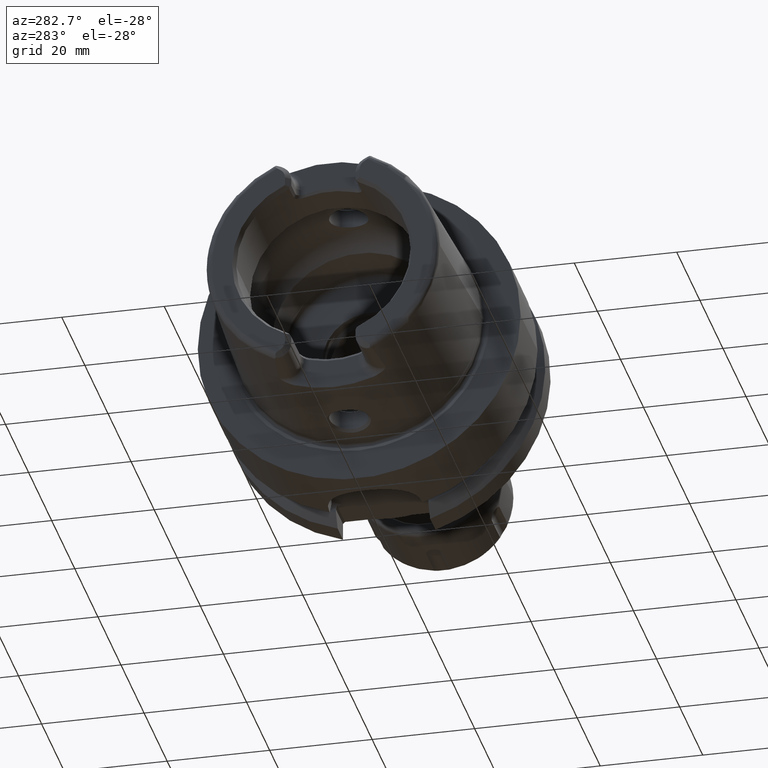
[diagram: clean part render]
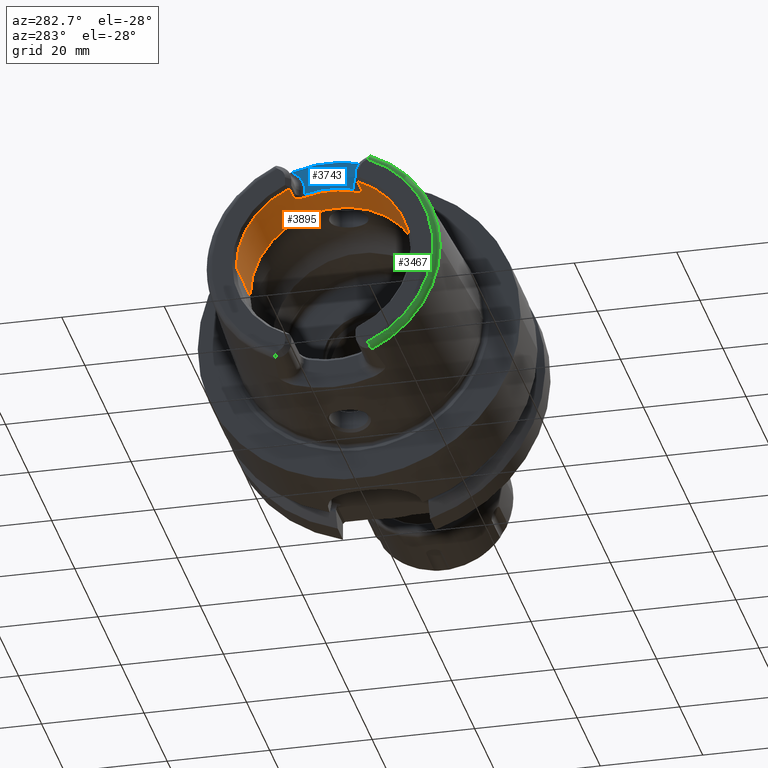
[diagram: same view with three faces highlighted in distinct colors, each labeled with its STEP entity id]
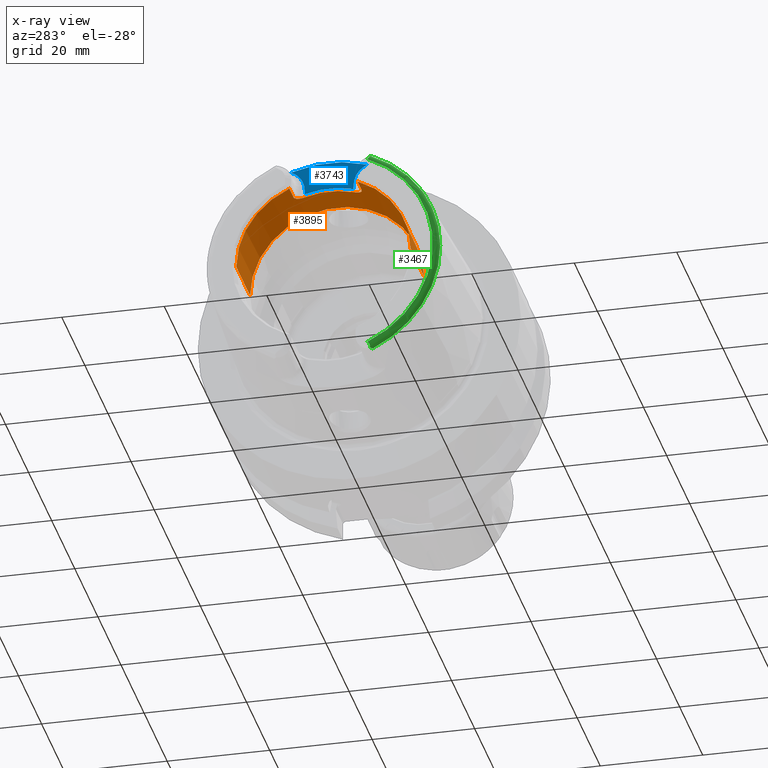
[diagram: x-ray of the same camera — body ghosted, the three highlighted faces saturated]
A machine part, auxiliary view with three faces highlighted in distinct colors.
The next image is the same camera in x-ray (body ghosted, the three faces saturated) — at least one of them is partly hidden behind the body in this view.
Their STEP definitions:

[orange] entity #3895 — the highlighted cylindrical surface (partial cylindrical patch) has radius 17 mm, axis along (1, 0, 0).
#362=CARTESIAN_POINT('',(-3.1E1,0.E0,0.E0));
#363=DIRECTION('',(1.E0,0.E0,0.E0));
#364=DIRECTION('',(0.E0,1.E0,0.E0));
#365=AXIS2_PLACEMENT_3D('',#362,#363,#364);
#394=CARTESIAN_POINT('',(-3.1E1,0.E0,0.E0));
#395=DIRECTION('',(1.E0,0.E0,0.E0));
#396=DIRECTION('',(0.E0,-3.910839598454E-1,9.203550056102E-1));
#397=AXIS2_PLACEMENT_3D('',#394,#395,#396);
#559=DIRECTION('',(1.E0,0.E0,0.E0));
#560=VECTOR('',#559,3.5E0);
#561=CARTESIAN_POINT('',(-3.1E1,6.648427317371E0,1.564603509537E1));
#562=LINE('',#561,#560);
#563=CARTESIAN_POINT('',(-2.571132486541E1,4.77E0,1.631708000838E1));
#564=CARTESIAN_POINT('',(-2.570911463045E1,4.851899929325E0,1.629313806150E1));
#565=CARTESIAN_POINT('',(-2.571539985496E1,5.014300274441E0,1.624433189365E1));
#566=CARTESIAN_POINT('',(-2.575723226820E1,5.255574737127E0,1.616786516493E1));
#567=CARTESIAN_POINT('',(-2.583019759937E1,5.488813832187E0,1.609012650164E1));
#568=CARTESIAN_POINT('',(-2.593222755914E1,5.709311810621E0,1.601314455534E1));
#569=CARTESIAN_POINT('',(-2.606208908479E1,5.913640570765E0,1.593873381343E1));
#570=CARTESIAN_POINT('',(-2.621579663552E1,6.097621457296E0,1.586916363348E1));
#571=CARTESIAN_POINT('',(-2.639004084082E1,6.257927374534E0,1.580654307494E1));
#572=CARTESIAN_POINT('',(-2.658287946713E1,6.394281114327E0,1.575179653388E1));
#573=CARTESIAN_POINT('',(-2.679414325254E1,6.504885265694E0,1.570637036291E1));
#574=CARTESIAN_POINT('',(-2.702072491693E1,6.586740689310E0,1.567215753589E1));
#575=CARTESIAN_POINT('',(-2.725841410654E1,6.637201205541E0,1.565081274977E1));
#576=CARTESIAN_POINT('',(-2.741884128981E1,6.648427317371E0,1.564603509537E1));
#577=CARTESIAN_POINT('',(-2.75E1,6.648427317371E0,1.564603509537E1));
#579=CARTESIAN_POINT('',(-2.571132486541E1,-4.77E0,1.631708000838E1));
#580=CARTESIAN_POINT('',(-2.571132486541E1,-4.151241293882E0,1.649796280277E1));
#581=CARTESIAN_POINT('',(-2.571132889067E1,-2.893125957956E0,1.678926713017E1));
#582=CARTESIAN_POINT('',(-2.571132738120E1,-9.685489423330E-1,
1.700915920873E1));
#583=CARTESIAN_POINT('',(-2.571132738120E1,9.685489423332E-1,1.700915920873E1));
#584=CARTESIAN_POINT('',(-2.571132889067E1,2.893125957955E0,1.678926713017E1));
#585=CARTESIAN_POINT('',(-2.571132486541E1,4.151241293884E0,1.649796280277E1));
#586=CARTESIAN_POINT('',(-2.571132486541E1,4.77E0,1.631708000838E1));
#588=CARTESIAN_POINT('',(-2.75E1,-6.648427317371E0,1.564603509537E1));
#589=CARTESIAN_POINT('',(-2.741886739757E1,-6.648427317371E0,1.564603509537E1));
#590=CARTESIAN_POINT('',(-2.725846026145E1,-6.637216591931E0,1.565080624648E1));
#591=CARTESIAN_POINT('',(-2.702047669465E1,-6.586680175792E0,1.567218311946E1));
#592=CARTESIAN_POINT('',(-2.679396033382E1,-6.504789416100E0,1.570640995358E1));
#593=CARTESIAN_POINT('',(-2.658322850975E1,-6.394447887183E0,1.575172726773E1));
#594=CARTESIAN_POINT('',(-2.639118887217E1,-6.258799446744E0,1.580619508840E1));
#595=CARTESIAN_POINT('',(-2.621738949273E1,-6.099242016698E0,1.586853752436E1));
#596=CARTESIAN_POINT('',(-2.606384631874E1,-5.916012648986E0,1.593785105703E1));
#597=CARTESIAN_POINT('',(-2.593366664869E1,-5.711955003317E0,1.601220141386E1));
#598=CARTESIAN_POINT('',(-2.583107108488E1,-5.491206341112E0,1.608931480424E1));
#599=CARTESIAN_POINT('',(-2.575746962839E1,-5.256749499660E0,1.616748882623E1));
#600=CARTESIAN_POINT('',(-2.571543732099E1,-5.014873021211E0,1.624415783103E1));
#601=CARTESIAN_POINT('',(-2.570911008721E1,-4.852068278437E0,1.629308884771E1));
#602=CARTESIAN_POINT('',(-2.571132486541E1,-4.77E0,1.631708000838E1));
#604=DIRECTION('',(1.E0,0.E0,0.E0));
#605=VECTOR('',#604,3.5E0);
#606=CARTESIAN_POINT('',(-3.1E1,-6.648427317371E0,1.564603509537E1));
#607=LINE('',#606,#605);
#608=CARTESIAN_POINT('',(-1.899602540378E1,0.E0,0.E0));
#609=DIRECTION('',(1.E0,0.E0,0.E0));
#610=DIRECTION('',(0.E0,1.E0,0.E0));
#611=AXIS2_PLACEMENT_3D('',#608,#609,#610);
#666=DIRECTION('',(-1.E0,0.E0,0.E0));
#667=VECTOR('',#666,1.200397459622E1);
#668=CARTESIAN_POINT('',(-1.899602540378E1,1.7E1,0.E0));
#669=LINE('',#668,#667);
#675=DIRECTION('',(-1.E0,0.E0,0.E0));
#676=VECTOR('',#675,1.200397459622E1);
#677=CARTESIAN_POINT('',(-1.899602540378E1,-1.7E1,0.E0));
#678=LINE('',#677,#676);
#2831=CARTESIAN_POINT('',(-1.899602540378E1,1.7E1,0.E0));
#2832=VERTEX_POINT('',#2831);
#2833=CARTESIAN_POINT('',(-3.1E1,1.7E1,0.E0));
#2834=VERTEX_POINT('',#2833);
#2843=CARTESIAN_POINT('',(-1.899602540378E1,-1.7E1,0.E0));
#2844=VERTEX_POINT('',#2843);
#2845=CARTESIAN_POINT('',(-3.1E1,-1.7E1,0.E0));
#2846=VERTEX_POINT('',#2845);
#2912=CARTESIAN_POINT('',(-2.75E1,6.648427317371E0,1.564603509537E1));
#2913=VERTEX_POINT('',#2912);
#2914=CARTESIAN_POINT('',(-2.571132486541E1,4.77E0,1.631708000838E1));
#2915=VERTEX_POINT('',#2914);
#2916=CARTESIAN_POINT('',(-2.75E1,-6.648427317371E0,1.564603509537E1));
#2917=VERTEX_POINT('',#2916);
#2918=CARTESIAN_POINT('',(-2.571132486541E1,-4.77E0,1.631708000838E1));
#2919=VERTEX_POINT('',#2918);
#2924=CARTESIAN_POINT('',(-3.1E1,6.648427317371E0,1.564603509537E1));
#2925=VERTEX_POINT('',#2924);
#2926=CARTESIAN_POINT('',(-3.1E1,-6.648427317371E0,1.564603509537E1));
#2927=VERTEX_POINT('',#2926);
#3874=CARTESIAN_POINT('',(-3.41E1,0.E0,0.E0));
#3875=DIRECTION('',(1.E0,0.E0,0.E0));
#3876=DIRECTION('',(0.E0,-1.E0,0.E0));
#3877=AXIS2_PLACEMENT_3D('',#3874,#3875,#3876);
#3878=CYLINDRICAL_SURFACE('',#3877,1.7E1);
#3879=ORIENTED_EDGE('',*,*,#3611,.T.);
#3881=ORIENTED_EDGE('',*,*,#3880,.F.);
#3882=ORIENTED_EDGE('',*,*,#3759,.F.);
#3883=ORIENTED_EDGE('',*,*,#3814,.F.);
#3884=ORIENTED_EDGE('',*,*,#3829,.F.);
#3885=ORIENTED_EDGE('',*,*,#3576,.T.);
#3887=ORIENTED_EDGE('',*,*,#3886,.F.);
#3889=ORIENTED_EDGE('',*,*,#3888,.F.);
#3891=ORIENTED_EDGE('',*,*,#3890,.T.);
#3892=ORIENTED_EDGE('',*,*,#3556,.T.);
#3893=EDGE_LOOP('',(#3879,#3881,#3882,#3883,#3884,#3885,#3887,#3889,#3891,
#3892));
#3894=FACE_OUTER_BOUND('',#3893,.F.);
#3895=ADVANCED_FACE('',(#3894),#3878,.F.);
#366=CIRCLE('',#365,1.7E1);
#398=CIRCLE('',#397,1.7E1);
#578=B_SPLINE_CURVE_WITH_KNOTS('',3,(#563,#564,#565,#566,#567,#568,#569,#570,
#571,#572,#573,#574,#575,#576,#577),.UNSPECIFIED.,.F.,.F.,(4,1,1,1,1,1,1,1,1,1,
1,1,4),(0.E0,8.333333333333E-2,1.666666666667E-1,2.5E-1,3.333333333333E-1,
4.166666666667E-1,5.E-1,5.833333333333E-1,6.666666666667E-1,7.5E-1,
8.333333333333E-1,9.166666666667E-1,1.E0),.UNSPECIFIED.);
#587=B_SPLINE_CURVE_WITH_KNOTS('',3,(#579,#580,#581,#582,#583,#584,#585,#586),
.UNSPECIFIED.,.F.,.F.,(4,1,1,1,1,4),(0.E0,2.E-1,4.E-1,6.E-1,8.E-1,1.E0),
.UNSPECIFIED.);
#603=B_SPLINE_CURVE_WITH_KNOTS('',3,(#588,#589,#590,#591,#592,#593,#594,#595,
#596,#597,#598,#599,#600,#601,#602),.UNSPECIFIED.,.F.,.F.,(4,1,1,1,1,1,1,1,1,1,
1,1,4),(0.E0,8.333333333333E-2,1.666666666667E-1,2.5E-1,3.333333333333E-1,
4.166666666667E-1,5.E-1,5.833333333333E-1,6.666666666667E-1,7.5E-1,
8.333333333333E-1,9.166666666667E-1,1.E0),.UNSPECIFIED.);
#612=CIRCLE('',#611,1.7E1);
#3556=EDGE_CURVE('',#2834,#2925,#366,.T.);
#3576=EDGE_CURVE('',#2927,#2846,#398,.T.);
#3611=EDGE_CURVE('',#2925,#2913,#562,.T.);
#3759=EDGE_CURVE('',#2919,#2915,#587,.T.);
#3814=EDGE_CURVE('',#2917,#2919,#603,.T.);
#3829=EDGE_CURVE('',#2927,#2917,#607,.T.);
#3880=EDGE_CURVE('',#2915,#2913,#578,.T.);
#3886=EDGE_CURVE('',#2844,#2846,#678,.T.);
#3888=EDGE_CURVE('',#2832,#2844,#612,.T.);
#3890=EDGE_CURVE('',#2832,#2834,#669,.T.);

[blue] entity #3743 — the highlighted planar face has unit normal (-1, 0, 0).
#9=CARTESIAN_POINT('',(-2.6E1,0.E0,0.E0));
#10=DIRECTION('',(1.E0,0.E0,0.E0));
#11=DIRECTION('',(0.E0,3.233021702202E-1,9.462957818415E-1));
#12=AXIS2_PLACEMENT_3D('',#9,#10,#11);
#508=DIRECTION('',(0.E0,1.645939623868E-11,1.E0));
#509=VECTOR('',#508,8.529199916087E-1);
#510=CARTESIAN_POINT('',(-2.6E1,4.769999999986E0,1.681708000839E1));
#511=LINE('',#510,#509);
#512=CARTESIAN_POINT('',(-2.6E1,9.27E0,1.767E1));
#513=DIRECTION('',(-1.E0,0.E0,0.E0));
#514=DIRECTION('',(0.E0,-1.E0,0.E0));
#515=AXIS2_PLACEMENT_3D('',#512,#513,#514);
#517=CARTESIAN_POINT('',(-2.6E1,-9.27E0,1.767E1));
#518=DIRECTION('',(-1.E0,0.E0,0.E0));
#519=DIRECTION('',(0.E0,4.062693958732E-1,9.137533463560E-1));
#520=AXIS2_PLACEMENT_3D('',#517,#518,#519);
#522=DIRECTION('',(0.E0,1.641566002193E-11,-1.E0));
#523=VECTOR('',#522,8.529199916084E-1);
#524=CARTESIAN_POINT('',(-2.6E1,-4.770000000001E0,1.767E1));
#525=LINE('',#524,#523);
#526=CARTESIAN_POINT('',(-2.6E1,4.769999999986E0,1.681708000839E1));
#527=CARTESIAN_POINT('',(-2.6E1,4.148583737710E0,1.699873969073E1));
#528=CARTESIAN_POINT('',(-2.6E1,2.894384068626E0,1.728890718055E1));
#529=CARTESIAN_POINT('',(-2.6E1,9.681288020921E-1,1.750922547308E1));
#530=CARTESIAN_POINT('',(-2.6E1,-9.681288020820E-1,1.750922547309E1));
#531=CARTESIAN_POINT('',(-2.6E1,-2.894384068607E0,1.728890718055E1));
#532=CARTESIAN_POINT('',(-2.6E1,-4.148583737703E0,1.699873969073E1));
#533=CARTESIAN_POINT('',(-2.6E1,-4.769999999987E0,1.681708000839E1));
#2852=CARTESIAN_POINT('',(-2.6E1,4.77E0,1.767E1));
#2854=VERTEX_POINT('',#2852);
#2856=CARTESIAN_POINT('',(-2.6E1,-4.77E0,1.767E1));
#2858=VERTEX_POINT('',#2856);
#2860=CARTESIAN_POINT('',(-2.6E1,7.441787718571E0,2.178189005860E1));
#2861=VERTEX_POINT('',#2860);
#2866=CARTESIAN_POINT('',(-2.6E1,-7.441787718571E0,2.178189005860E1));
#2867=VERTEX_POINT('',#2866);
#2904=CARTESIAN_POINT('',(-2.6E1,4.769999999986E0,1.681708000839E1));
#2905=VERTEX_POINT('',#2904);
#2906=CARTESIAN_POINT('',(-2.6E1,-4.769999999987E0,1.681708000839E1));
#2907=VERTEX_POINT('',#2906);
#3729=CARTESIAN_POINT('',(-2.6E1,0.E0,0.E0));
#3730=DIRECTION('',(-1.E0,0.E0,0.E0));
#3731=DIRECTION('',(0.E0,0.E0,1.E0));
#3732=AXIS2_PLACEMENT_3D('',#3729,#3730,#3731);
#3733=PLANE('',#3732);
#3734=ORIENTED_EDGE('',*,*,#3640,.T.);
#3735=ORIENTED_EDGE('',*,*,#3658,.T.);
#3736=ORIENTED_EDGE('',*,*,#3303,.T.);
#3737=ORIENTED_EDGE('',*,*,#3364,.T.);
#3738=ORIENTED_EDGE('',*,*,#3382,.T.);
#3740=ORIENTED_EDGE('',*,*,#3739,.F.);
#3741=EDGE_LOOP('',(#3734,#3735,#3736,#3737,#3738,#3740));
#3742=FACE_OUTER_BOUND('',#3741,.F.);
#3743=ADVANCED_FACE('',(#3742),#3733,.T.);
#13=CIRCLE('',#12,2.301805680272E1);
#516=CIRCLE('',#515,4.5E0);
#521=CIRCLE('',#520,4.5E0);
#534=B_SPLINE_CURVE_WITH_KNOTS('',3,(#526,#527,#528,#529,#530,#531,#532,#533),
.UNSPECIFIED.,.F.,.F.,(4,1,1,1,1,4),(0.E0,2.E-1,4.E-1,6.E-1,8.E-1,1.E0),
.UNSPECIFIED.);
#3303=EDGE_CURVE('',#2861,#2867,#13,.T.);
#3364=EDGE_CURVE('',#2867,#2858,#521,.T.);
#3382=EDGE_CURVE('',#2858,#2907,#525,.T.);
#3640=EDGE_CURVE('',#2905,#2854,#511,.T.);
#3658=EDGE_CURVE('',#2854,#2861,#516,.T.);
#3739=EDGE_CURVE('',#2905,#2907,#534,.T.);

[green] entity #3467 — the highlighted toroidal blend (fillet) surface has major radius 21.5761 mm and minor (blend) radius 1.2 mm.
#220=CARTESIAN_POINT('',(-3.2E1,-8.752868121732E0,-1.972091419616E1));
#221=CARTESIAN_POINT('',(-3.2E1,-8.806191392107E0,-1.975573003538E1));
#222=CARTESIAN_POINT('',(-3.199307728065E1,-8.906838058357E0,
-1.982971194007E1));
#223=CARTESIAN_POINT('',(-3.195660462370E1,-9.041248816786E0,
-1.996103000182E1));
#224=CARTESIAN_POINT('',(-3.189040233195E1,-9.144202826203E0,
-2.010731482616E1));
#225=CARTESIAN_POINT('',(-3.179646342749E1,-9.206041881340E0,
-2.025988014952E1));
#226=CARTESIAN_POINT('',(-3.168160529070E1,-9.224292971301E0,
-2.040896943202E1));
#227=CARTESIAN_POINT('',(-3.155472601909E1,-9.203436757989E0,
-2.054688136818E1));
#228=CARTESIAN_POINT('',(-3.146778482605E1,-9.169293416595E0,
-2.062842062115E1));
#229=CARTESIAN_POINT('',(-3.142329832300E1,-9.147789680232E0,
-2.066750973939E1));
#231=CARTESIAN_POINT('',(-3.2E1,0.E0,0.E0));
#232=DIRECTION('',(-1.E0,0.E0,0.E0));
#233=DIRECTION('',(0.E0,-4.056746540583E-1,-9.140175463604E-1));
#234=AXIS2_PLACEMENT_3D('',#231,#232,#233);
#236=CARTESIAN_POINT('',(-3.142329832300E1,-9.147789680232E0,2.066750973939E1));
#237=CARTESIAN_POINT('',(-3.146785463680E1,-9.169327161481E0,2.062835928028E1));
#238=CARTESIAN_POINT('',(-3.155487993536E1,-9.203474960428E0,2.054672249220E1));
#239=CARTESIAN_POINT('',(-3.168154941819E1,-9.224273580731E0,2.040902349895E1));
#240=CARTESIAN_POINT('',(-3.179638971845E1,-9.206079697358E0,2.025999286960E1));
#241=CARTESIAN_POINT('',(-3.189041365611E1,-9.144200972137E0,2.010730009138E1));
#242=CARTESIAN_POINT('',(-3.195659880516E1,-9.041253650427E0,1.996104010677E1));
#243=CARTESIAN_POINT('',(-3.199307626724E1,-8.906850532423E0,1.982972129493E1));
#244=CARTESIAN_POINT('',(-3.2E1,-8.806197293584E0,1.975573388857E1));
#245=CARTESIAN_POINT('',(-3.2E1,-8.752868121732E0,1.972091419616E1));
#247=CARTESIAN_POINT('',(-3.132832518959E1,-9.27E0,2.067E1));
#248=CARTESIAN_POINT('',(-3.134450759901E1,-9.250608646179E0,2.067E1));
#249=CARTESIAN_POINT('',(-3.137648814066E1,-9.210816796832E0,2.066962390252E1));
#250=CARTESIAN_POINT('',(-3.140779600340E1,-9.169107457374E0,2.066837887831E1));
#251=CARTESIAN_POINT('',(-3.142329832300E1,-9.147789680232E0,2.066750973939E1));
#253=CARTESIAN_POINT('',(-3.086004306431E1,-9.562027931336E0,2.067E1));
#254=CARTESIAN_POINT('',(-3.089908117982E1,-9.557369764332E0,2.067E1));
#255=CARTESIAN_POINT('',(-3.097780815735E1,-9.539070199208E0,2.067E1));
#256=CARTESIAN_POINT('',(-3.110050491135E1,-9.479694699778E0,2.067E1));
#257=CARTESIAN_POINT('',(-3.121836320761E1,-9.390392333018E0,2.067E1));
#258=CARTESIAN_POINT('',(-3.129230837722E1,-9.313158885277E0,2.067E1));
#259=CARTESIAN_POINT('',(-3.132832518959E1,-9.27E0,2.067E1));
#261=CARTESIAN_POINT('',(-3.086004306431E1,0.E0,0.E0));
#262=DIRECTION('',(1.E0,0.E0,0.E0));
#263=DIRECTION('',(0.E0,-4.198553792210E-1,9.075910205259E-1));
#264=AXIS2_PLACEMENT_3D('',#261,#262,#263);
#266=CARTESIAN_POINT('',(-3.086004306431E1,0.E0,0.E0));
#267=DIRECTION('',(-1.E0,0.E0,0.E0));
#268=DIRECTION('',(0.E0,-4.198553792210E-1,-9.075910205259E-1));
#269=AXIS2_PLACEMENT_3D('',#266,#267,#268);
#271=CARTESIAN_POINT('',(-3.132832518959E1,-9.27E0,-2.067E1));
#272=CARTESIAN_POINT('',(-3.129225458868E1,-9.313223339992E0,-2.067E1));
#273=CARTESIAN_POINT('',(-3.121820569130E1,-9.390519030682E0,-2.067E1));
#274=CARTESIAN_POINT('',(-3.110062643974E1,-9.479612323317E0,-2.067E1));
#275=CARTESIAN_POINT('',(-3.097775607391E1,-9.539101836846E0,-2.067E1));
#276=CARTESIAN_POINT('',(-3.089906305674E1,-9.557371926843E0,-2.067E1));
#277=CARTESIAN_POINT('',(-3.086004306431E1,-9.562027931336E0,-2.067E1));
#279=CARTESIAN_POINT('',(-3.142329832300E1,-9.147789680232E0,
-2.066750973939E1));
#280=CARTESIAN_POINT('',(-3.140773724452E1,-9.169188258734E0,
-2.066838217263E1));
#281=CARTESIAN_POINT('',(-3.137636553203E1,-9.210974971125E0,
-2.066962696388E1));
#282=CARTESIAN_POINT('',(-3.134444355624E1,-9.250685388521E0,-2.067E1));
#283=CARTESIAN_POINT('',(-3.132832518959E1,-9.27E0,-2.067E1));
#2809=CARTESIAN_POINT('',(-3.086004306431E1,-2.277457525750E1,0.E0));
#2810=VERTEX_POINT('',#2809);
#2849=CARTESIAN_POINT('',(-3.086004306431E1,-9.562027931336E0,2.067E1));
#2850=VERTEX_POINT('',#2849);
#2851=VERTEX_POINT('',#259);
#2887=VERTEX_POINT('',#251);
#2896=CARTESIAN_POINT('',(-3.2E1,-8.752868121732E0,1.972091419616E1));
#2897=VERTEX_POINT('',#2896);
#2930=CARTESIAN_POINT('',(-3.086004306431E1,-9.562027931336E0,-2.067E1));
#2931=VERTEX_POINT('',#2930);
#2932=VERTEX_POINT('',#271);
#2993=CARTESIAN_POINT('',(-3.2E1,-8.752868121732E0,-1.972091419616E1));
#2994=VERTEX_POINT('',#2993);
#2995=VERTEX_POINT('',#229);
#3445=CARTESIAN_POINT('',(-3.08E1,0.E0,0.E0));
#3446=DIRECTION('',(1.E0,0.E0,0.E0));
#3447=DIRECTION('',(0.E0,-1.E0,0.E0));
#3448=AXIS2_PLACEMENT_3D('',#3445,#3446,#3447);
#3449=TOROIDAL_SURFACE('',#3448,2.157607835286E1,1.2E0);
#3451=ORIENTED_EDGE('',*,*,#3450,.F.);
#3453=ORIENTED_EDGE('',*,*,#3452,.T.);
#3455=ORIENTED_EDGE('',*,*,#3454,.F.);
#3456=ORIENTED_EDGE('',*,*,#3408,.F.);
#3457=ORIENTED_EDGE('',*,*,#3338,.F.);
#3458=ORIENTED_EDGE('',*,*,#3319,.T.);
#3460=ORIENTED_EDGE('',*,*,#3459,.F.);
#3462=ORIENTED_EDGE('',*,*,#3461,.F.);
#3464=ORIENTED_EDGE('',*,*,#3463,.F.);
#3465=EDGE_LOOP('',(#3451,#3453,#3455,#3456,#3457,#3458,#3460,#3462,#3464));
#3466=FACE_OUTER_BOUND('',#3465,.F.);
#3467=ADVANCED_FACE('',(#3466),#3449,.T.);
#230=B_SPLINE_CURVE_WITH_KNOTS('',3,(#220,#221,#222,#223,#224,#225,#226,#227,
#228,#229),.UNSPECIFIED.,.F.,.F.,(4,1,1,1,1,1,1,4),(0.E0,1.428571428571E-1,
2.857142857143E-1,4.285714285714E-1,5.714285714286E-1,7.142857142857E-1,
8.571428571429E-1,1.E0),.UNSPECIFIED.);
#235=CIRCLE('',#234,2.157607835286E1);
#246=B_SPLINE_CURVE_WITH_KNOTS('',3,(#236,#237,#238,#239,#240,#241,#242,#243,
#244,#245),.UNSPECIFIED.,.F.,.F.,(4,1,1,1,1,1,1,4),(0.E0,1.428571428571E-1,
2.857142857143E-1,4.285714285714E-1,5.714285714286E-1,7.142857142857E-1,
8.571428571429E-1,1.E0),.UNSPECIFIED.);
#252=B_SPLINE_CURVE_WITH_KNOTS('',3,(#247,#248,#249,#250,#251),.UNSPECIFIED.,
.F.,.F.,(4,1,4),(0.E0,5.E-1,1.E0),.UNSPECIFIED.);
#260=B_SPLINE_CURVE_WITH_KNOTS('',3,(#253,#254,#255,#256,#257,#258,#259),
.UNSPECIFIED.,.F.,.F.,(4,1,1,1,4),(0.E0,2.5E-1,5.E-1,7.5E-1,1.E0),
.UNSPECIFIED.);
#265=CIRCLE('',#264,2.277457525750E1);
#270=CIRCLE('',#269,2.277457525750E1);
#278=B_SPLINE_CURVE_WITH_KNOTS('',3,(#271,#272,#273,#274,#275,#276,#277),
.UNSPECIFIED.,.F.,.F.,(4,1,1,1,4),(0.E0,2.5E-1,5.E-1,7.5E-1,1.E0),
.UNSPECIFIED.);
#284=B_SPLINE_CURVE_WITH_KNOTS('',3,(#279,#280,#281,#282,#283),.UNSPECIFIED.,
.F.,.F.,(4,1,4),(0.E0,5.E-1,1.E0),.UNSPECIFIED.);
#3319=EDGE_CURVE('',#2850,#2810,#265,.T.);
#3338=EDGE_CURVE('',#2850,#2851,#260,.T.);
#3408=EDGE_CURVE('',#2851,#2887,#252,.T.);
#3450=EDGE_CURVE('',#2994,#2995,#230,.T.);
#3452=EDGE_CURVE('',#2994,#2897,#235,.T.);
#3454=EDGE_CURVE('',#2887,#2897,#246,.T.);
#3459=EDGE_CURVE('',#2931,#2810,#270,.T.);
#3461=EDGE_CURVE('',#2932,#2931,#278,.T.);
#3463=EDGE_CURVE('',#2995,#2932,#284,.T.);